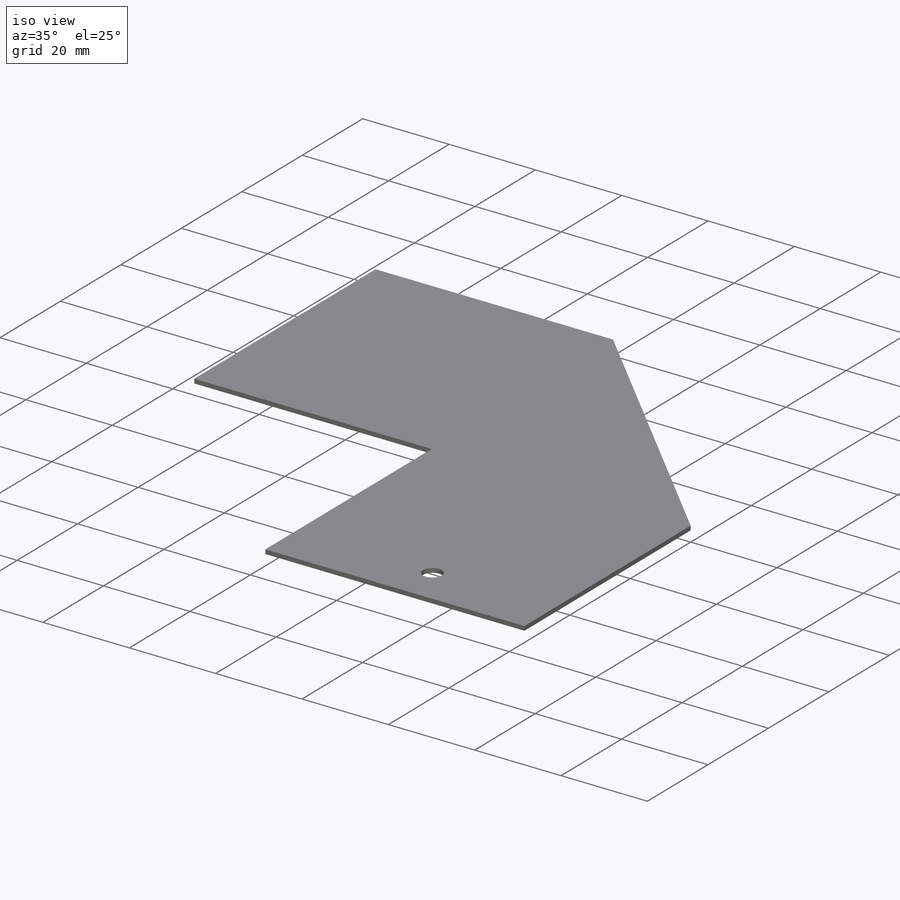
[diagram: iso view]
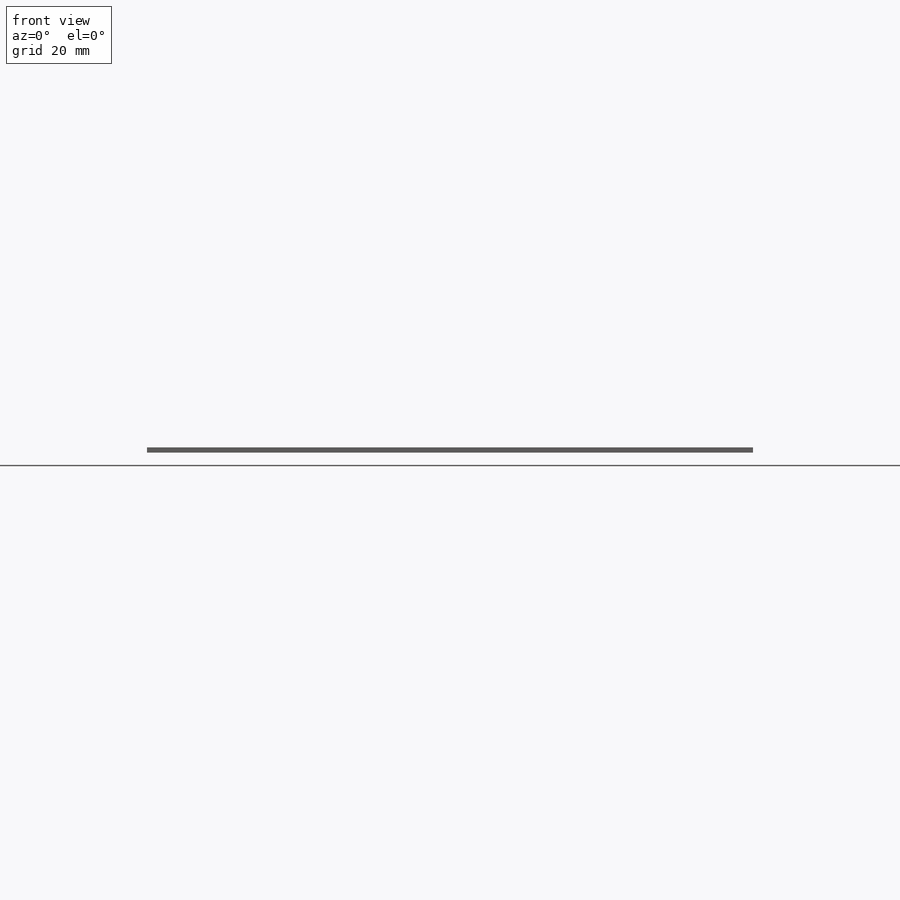
[diagram: front view]
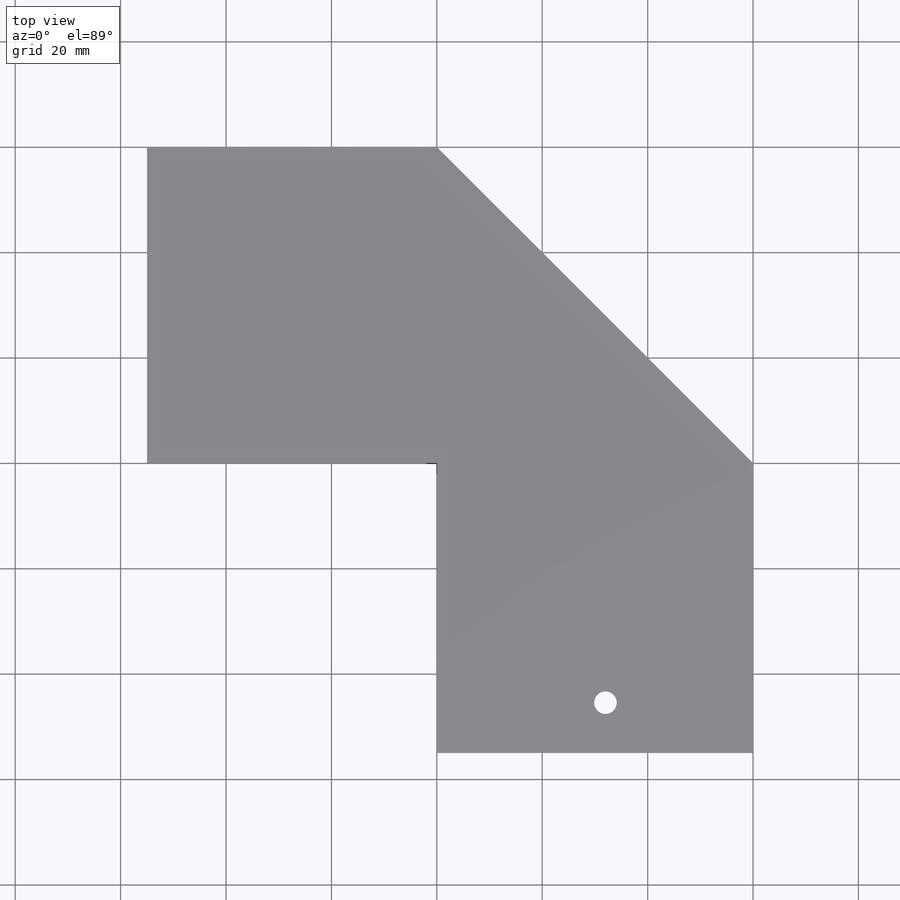
[diagram: top view]
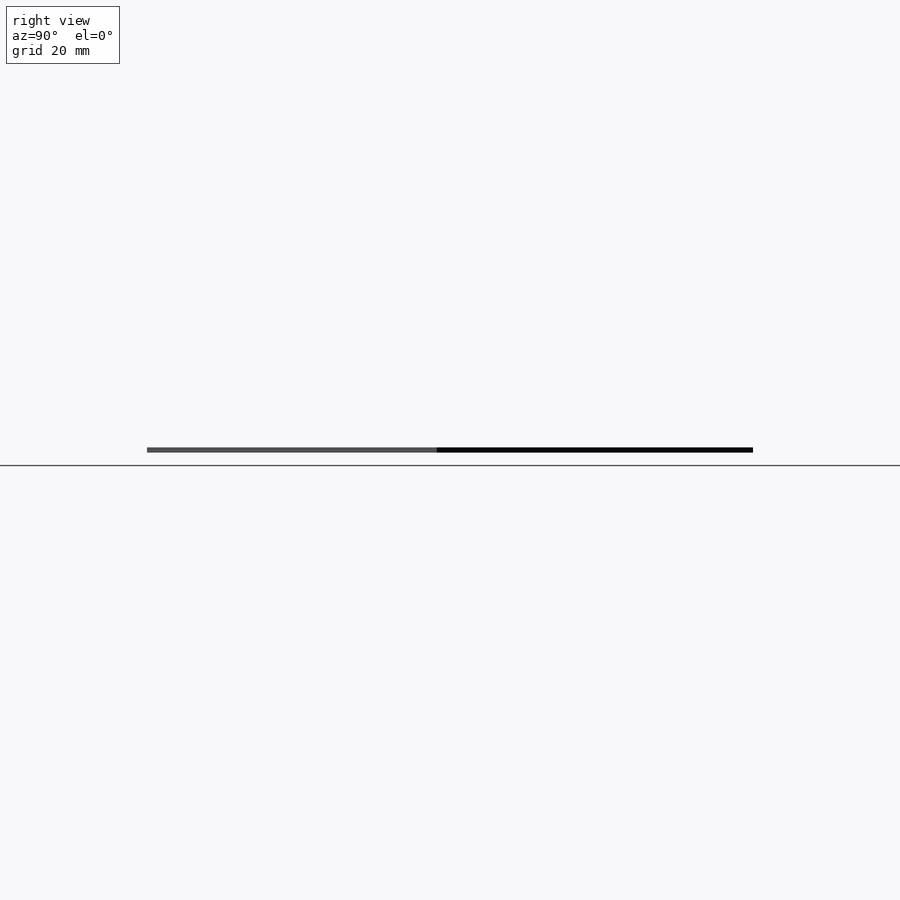
[diagram: right view]
SOLIDWORKS PART (.sldprt)
format: sldprt  version: not decoded by parser v0  size: 286,208 bytes
history: native  units: mm
features: sketch x12, extrude x4, sheet_metal_op x2, material x1, cut_extrude x1 + 5 further entries (+13 scaffold rows collapsed; 1 parser-record rows omitted)
feature tree (39):
  scaffold x13  (default folders/planes/origin — collapsed)
  material  "Material <not specified>"
  sketch  "Sketch11"  dims[D1=60.0mm D2=60.0mm]
  extrude  "Boss-Extrude4"  Depth=1mm
  sketch  "Sketch12"  dims[D1=55.0mm D2=60.0mm]
  extrude  "Boss-Extrude5"  Depth=1mm
  sketch  "Sketch13"  dims[D1=55.0mm D2=60.0mm]
  extrude  "Boss-Extrude6"  Depth=1mm
  sketch  "Sketch23"
  parser-record x1  (decoder bookkeeping rows leaked as tree rows — omitted from the tree; the rows remain in map.json)
  sketch  "Sketch27"
  extrude  "Sketched Bend27"  Depth=0 Sketch Transformation29=0
  "SketchBend29"
  sketch  "Sketch28"  dims[D1=4.3mm D2=9.55mm D3=28.0mm]
  cut_extrude  "Cut-Extrude2"  Depth=10mm
  sketch  "Bend-Lines3"
  sketch  "Bounding-Box3"
  sheet_metal_op  "Sheet-Metal8"
  "Flat-Pattern8"
  sketch  "Bend-Lines4"
  sketch  "Bounding-Box4"
  "Flatten-<SketchBend29>1"  Sketch Transformation5=0
  sheet_metal_op  "Sheet-Metal10"
  sketch  "Bend-Lines4"
  sketch  "Bounding-Box4"
  "Flatten-<SketchBend25>1"
  "Flatten-<SketchBend29>1"  Sketch Transformation5=0
decode coverage: 9 of 19 modeling features carry decoded parameters; 5 rows unclassified (native names shown)
note: suppression state not decoded; provenance and decode notes live in map.json
